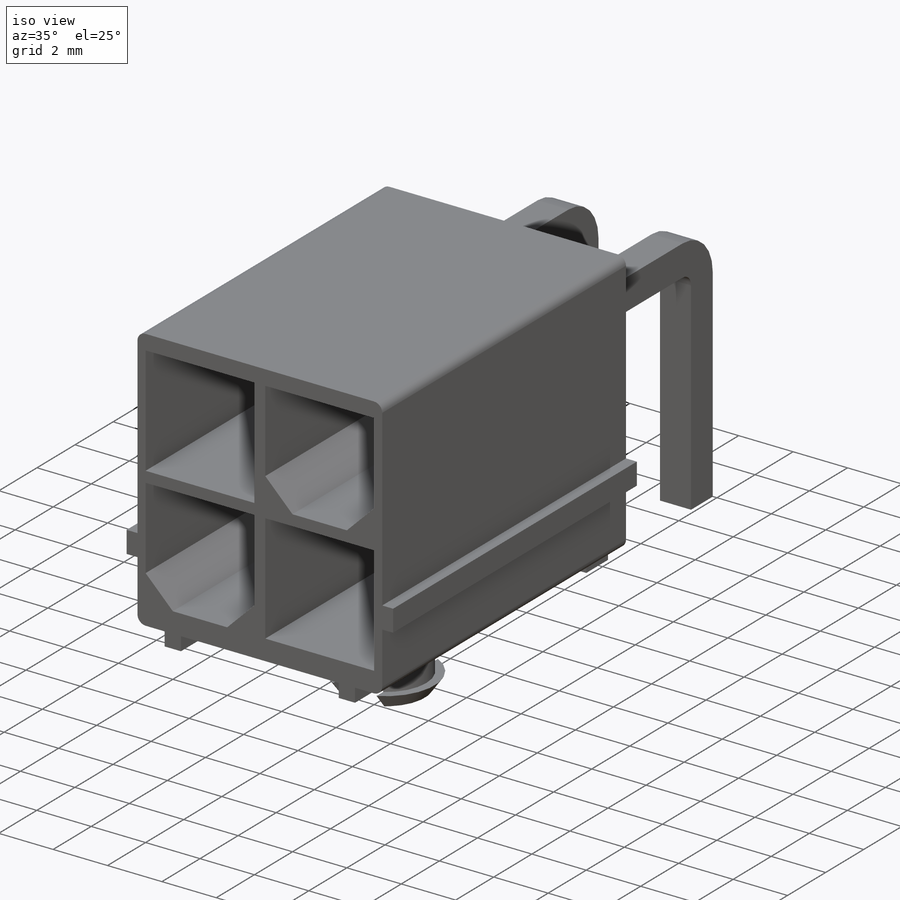
[diagram: iso view]
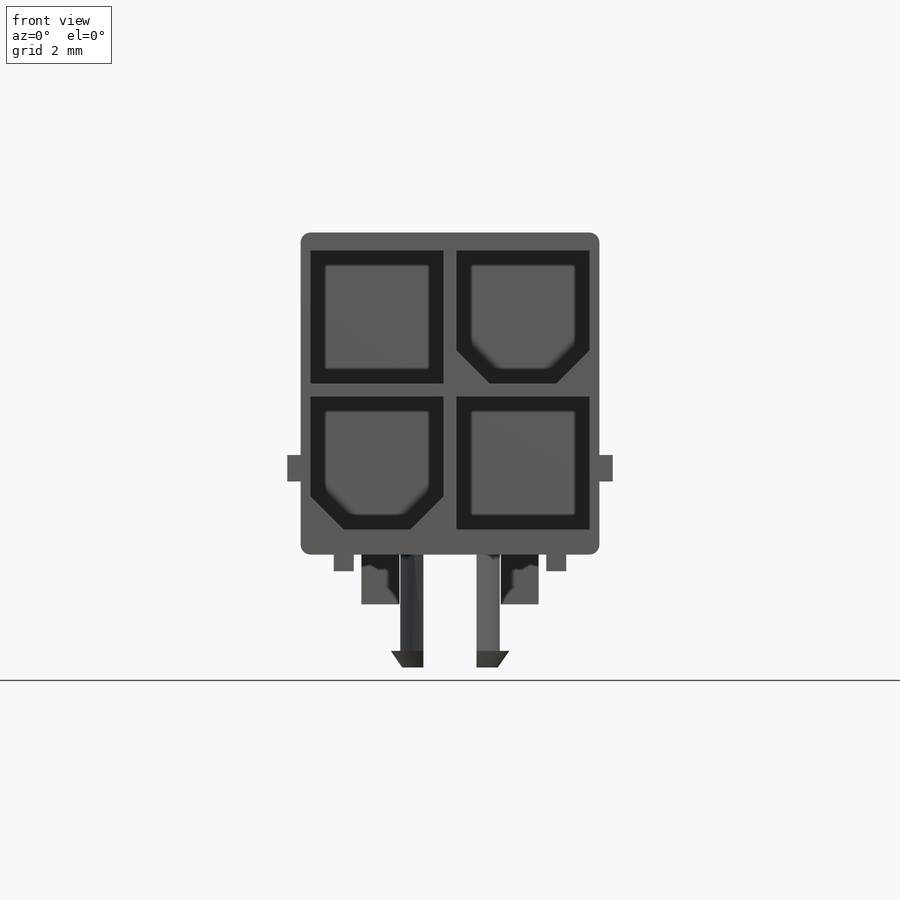
[diagram: front view]
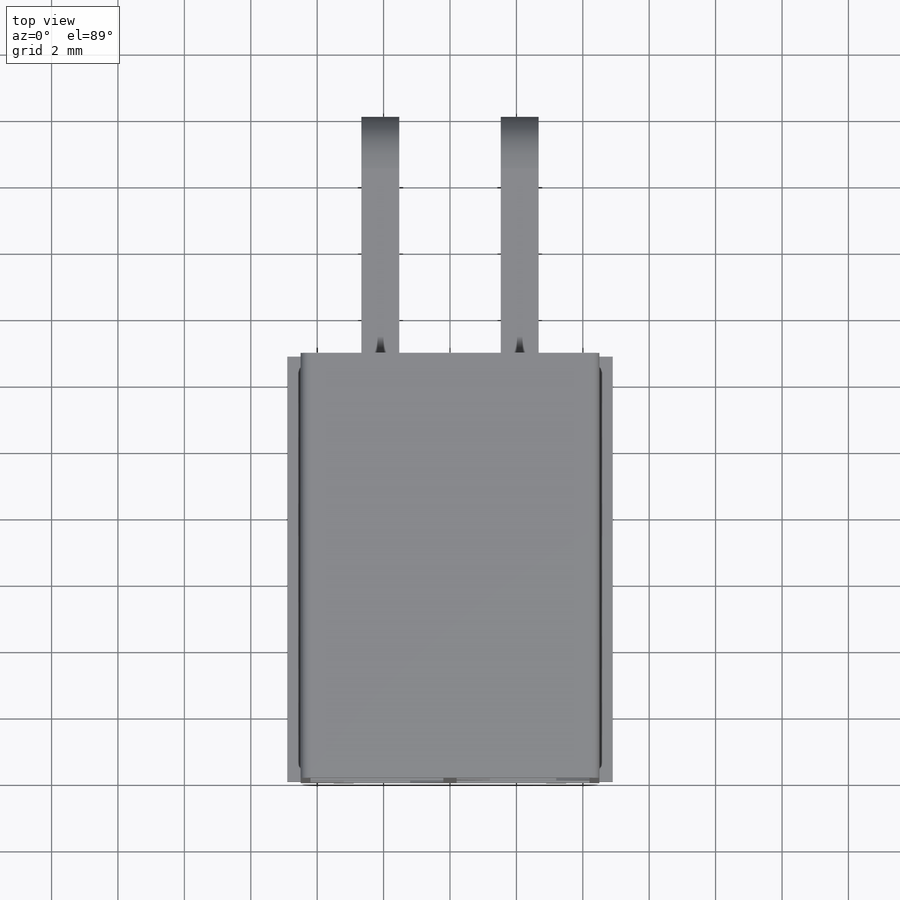
[diagram: top view]
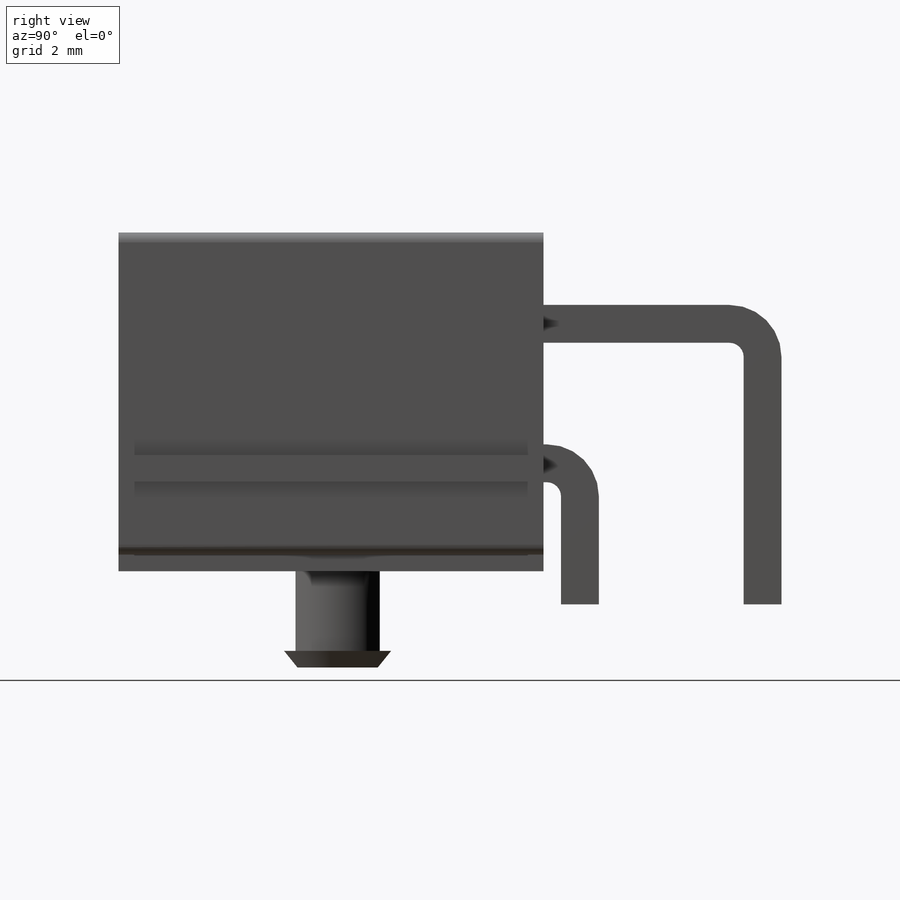
[diagram: right view]
SOLIDWORKS PART (.sldprt)
format: sldprt  version: not decoded by parser v0  size: 388,096 bytes
history: native  units: mm
features: sketch x8, plane x2, sweep x2, pattern_linear x2, cut_extrude x2, material x1, extrude x1, fillet x1, revolve x1 (+16 scaffold rows collapsed)
feature tree (36):
  scaffold x16  (default folders/planes/origin — collapsed)
  material  "Material <not specified>"
  sketch  "Sketch1"  dims[D1=9.7mm D2=9.0mm D3=0.5mm D4=0.4mm D5=0.8mm D6=3.0mm D7=0.6mm D8=1.0mm D9=1.0mm]
  extrude  "Boss-Extrude1"  Depth=12.8mm
  plane  "Plane1"  Offset=2.1mm
  plane  "Plane2"  Offset=2.1mm
  sketch  "Sketch2"  dims[c1.D1=4.2mm c2.D1=~0.183642deg c3.D1=4.2mm c3.D2=1.14mm]
  sketch  "Sketch3"  dims[D3=1.0mm D1=1.0mm D2=6.6mm]
  sketch  "Sketch4"
  sketch  "Sketch5"  dims[D2=1.0mm D1=1.1mm]
  sweep  "Sweep2"
  sweep  "Sweep3"
  pattern_linear  "LPattern2"  Count1=2 Count2=1 Spacing1=4.2mm Spacing2=10mm
  pattern_linear  "LPattern3"  Count1=2 Count2=1 Spacing1=4.2mm Spacing2=10mm
  fillet  "Fillet1"  Radius=0.3mm
  sketch  "Sketch6"  dims[c1.D1=4.0mm c1.D2=4.0mm c1.D3=1.0mm c1.D4=1.0mm c1.D5=0.4mm c1.D6=0.5mm c1.D7=0.4mm c2.D6=0.3mm]
  cut_extrude  "Cut-Extrude1"  Depth=12mm
  sketch  "Sketch8"  dims[c1.D1=7.3mm c1.D2=1.5mm c1.D3=0.5mm c1.D4=2.9mm c1.D5=~0.426547mm c2.D5=55.0deg c2.D6=0.8mm c2.D7=0.5mm c2.D4=2.9mm]
  revolve  "Revolve1"  Angle=360deg
  sketch  "Sketch9"  dims[D1=1.6mm D2=3.5mm]
  cut_extrude  "Cut-Extrude2"  [1 undecoded]
decode coverage: 13 of 17 modeling features carry decoded parameters
note: ~ marks probable driven/reference dimensions
note: 1 parameter value undecoded
note: suppression state not decoded; provenance and decode notes live in map.json
